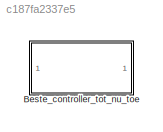
MODEL slx_c187fa2337e5
KIND model
CONFIG AbsTol = auto
CONFIG EnableMultiTasking = off
CONFIG FixedStep = auto
CONFIG MaxStep = auto
CONFIG MinStep = auto
CONFIG RelTol = 1e-3
CONFIG SampleTimeConstraint = Unconstrained
CONFIG SolverName = VariableStepAuto
CONFIG StartTime = 0.0
CONFIG StopTime = 10.0
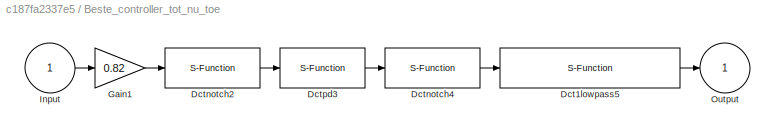
BLOCK [SubSystem] Beste_controller_tot_nu_toe
BLOCK [S-Function] Beste_controller_tot_nu_toe/Dct1lowpass5
  EnableBusSupport = off
  FunctionName = dlowpass1
  Parameters = f_den, 0.001
  SFcnIsStateOwnerBlock = off
  SFunctionDeploymentMode = off
BLOCK [S-Function] Beste_controller_tot_nu_toe/Dctnotch2
  EnableBusSupport = off
  FunctionName = dnotch
  Parameters = f_num, b_num, f_den, b_den, 0.001
  SFcnIsStateOwnerBlock = off
  SFunctionDeploymentMode = off
BLOCK [S-Function] Beste_controller_tot_nu_toe/Dctnotch4
  EnableBusSupport = off
  FunctionName = dnotch
  Parameters = f_num, b_num, f_den, b_den, 0.001
  SFcnIsStateOwnerBlock = off
  SFunctionDeploymentMode = off
BLOCK [S-Function] Beste_controller_tot_nu_toe/Dctpd3
  EnableBusSupport = off
  FunctionName = dpd
  Parameters = kp, kv, 0.001
  SFcnIsStateOwnerBlock = off
  SFunctionDeploymentMode = off
BLOCK [Gain] Beste_controller_tot_nu_toe/Gain1
  Gain = 0.82
BLOCK [Inport] Beste_controller_tot_nu_toe/Input
BLOCK [Outport] Beste_controller_tot_nu_toe/Output
LINE Beste_controller_tot_nu_toe/Dct1lowpass5:1 -> Beste_controller_tot_nu_toe/Output:1
LINE Beste_controller_tot_nu_toe/Dctnotch2:1 -> Beste_controller_tot_nu_toe/Dctpd3:1
LINE Beste_controller_tot_nu_toe/Dctnotch4:1 -> Beste_controller_tot_nu_toe/Dct1lowpass5:1
LINE Beste_controller_tot_nu_toe/Dctpd3:1 -> Beste_controller_tot_nu_toe/Dctnotch4:1
LINE Beste_controller_tot_nu_toe/Gain1:1 -> Beste_controller_tot_nu_toe/Dctnotch2:1
LINE Beste_controller_tot_nu_toe/Input:1 -> Beste_controller_tot_nu_toe/Gain1:1
